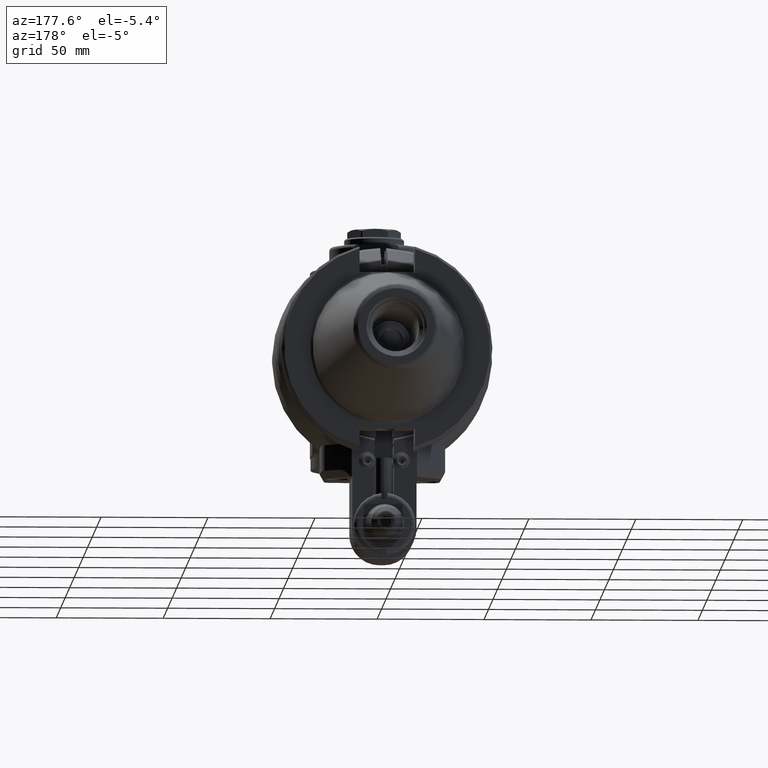
[diagram: clean part render]
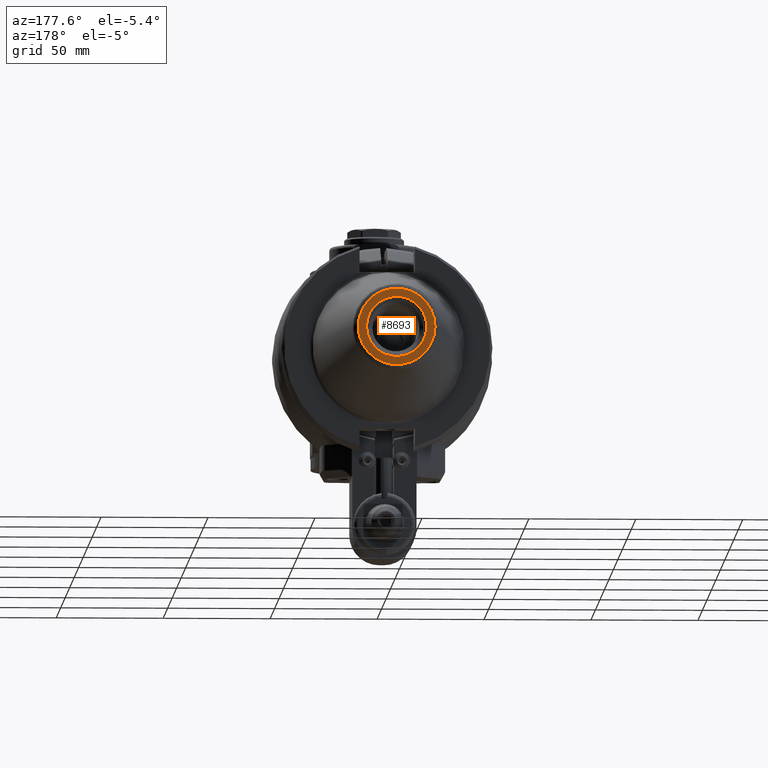
[diagram: same view with one face highlighted and labeled with its STEP entity id]
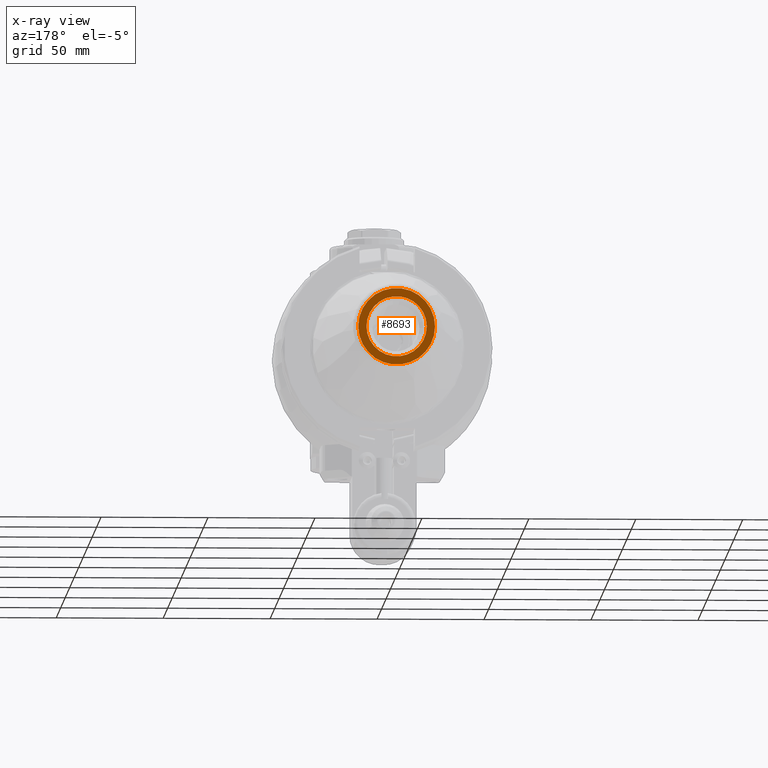
[diagram: x-ray of the same camera — body ghosted, the highlighted face saturated]
A machine part, auxiliary view. The second image highlights one B-rep face of the part: STEP entity #8693.
The next image is the same camera in x-ray: the body ghosted, the highlighted face saturated — about 0% of this face is hidden behind the body in this view.
In plain terms, the highlighted planar face has unit normal (0, 1, 0).
Its self-contained STEP definition (entity closure, byte-faithful):
#1726=FACE_BOUND('',#2932,.T.);
#1916=PLANE('',#9664);
#2355=FACE_OUTER_BOUND('',#2931,.T.);
#2931=EDGE_LOOP('',(#7533));
#2932=EDGE_LOOP('',(#7534));
#3496=CIRCLE('',#9663,17.94648113662);
#3497=CIRCLE('',#9665,14.0935);
#4235=VERTEX_POINT('',#16781);
#4236=VERTEX_POINT('',#16785);
#5383=EDGE_CURVE('',#4235,#4235,#3496,.T.);
#5384=EDGE_CURVE('',#4236,#4236,#3497,.T.);
#7533=ORIENTED_EDGE('',*,*,#5383,.T.);
#7534=ORIENTED_EDGE('',*,*,#5384,.T.);
#8693=ADVANCED_FACE('',(#2355,#1726),#1916,.T.);
#9663=AXIS2_PLACEMENT_3D('',#16783,#11891,#11892);
#9664=AXIS2_PLACEMENT_3D('',#16784,#11893,#11894);
#9665=AXIS2_PLACEMENT_3D('',#16786,#11895,#11896);
#11891=DIRECTION('center_axis',(0.,1.,0.));
#11892=DIRECTION('ref_axis',(0.,0.,1.));
#11893=DIRECTION('center_axis',(0.,1.,0.));
#11894=DIRECTION('ref_axis',(-1.,0.,0.));
#11895=DIRECTION('center_axis',(0.,-1.,0.));
#11896=DIRECTION('ref_axis',(-1.,0.,0.));
#16781=CARTESIAN_POINT('',(-17.94648113662,175.6,-2.197810067992E-15));
#16783=CARTESIAN_POINT('Origin',(0.,175.6,0.));
#16784=CARTESIAN_POINT('Origin',(15.96223008175,175.6,0.));
#16785=CARTESIAN_POINT('',(14.0935,175.6,0.));
#16786=CARTESIAN_POINT('Origin',(0.,175.6,0.));